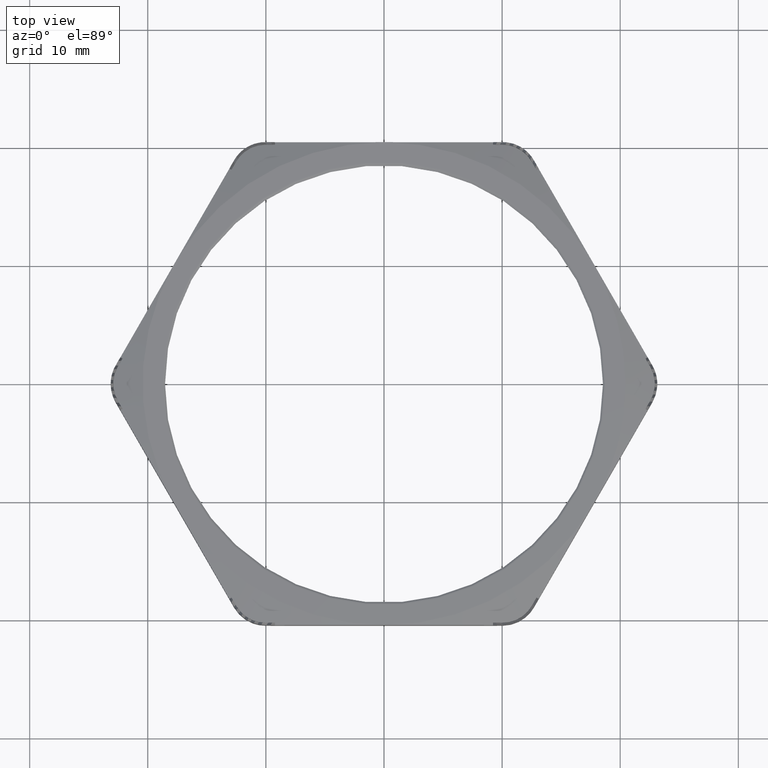
[diagram: clean part render]
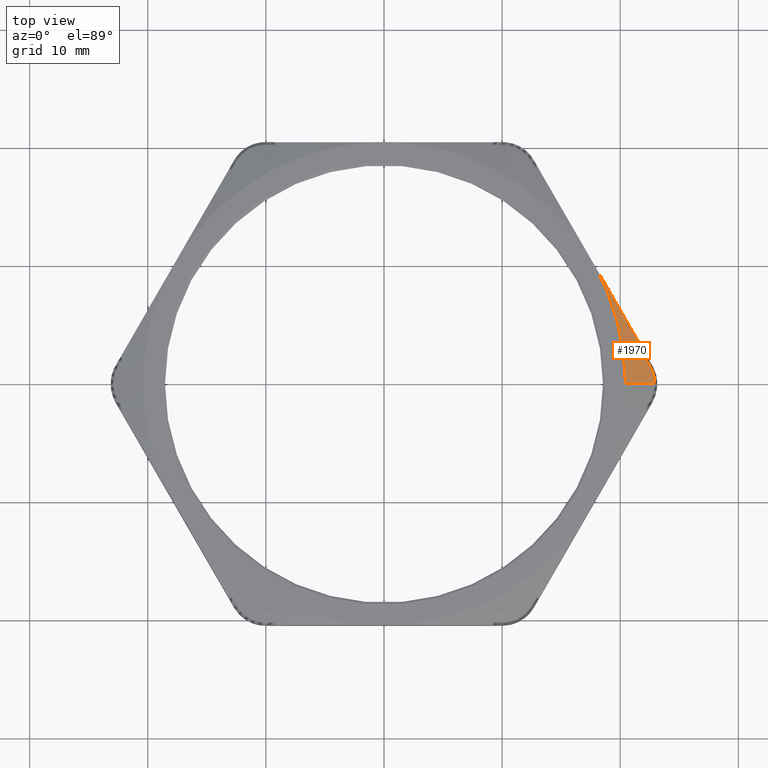
[diagram: same view with one face highlighted and labeled with its STEP entity id]
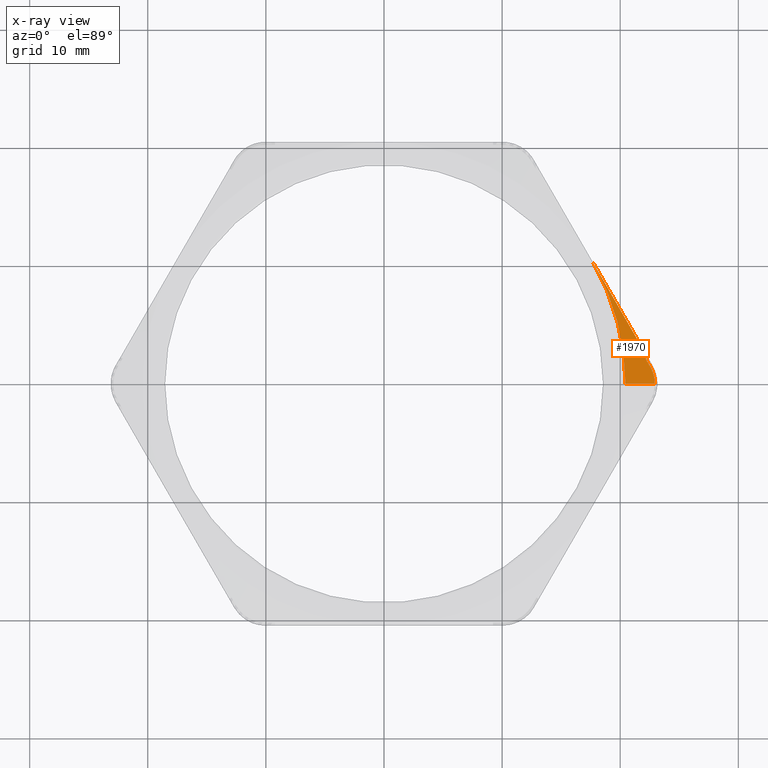
[diagram: x-ray of the same camera — body ghosted, the highlighted face saturated]
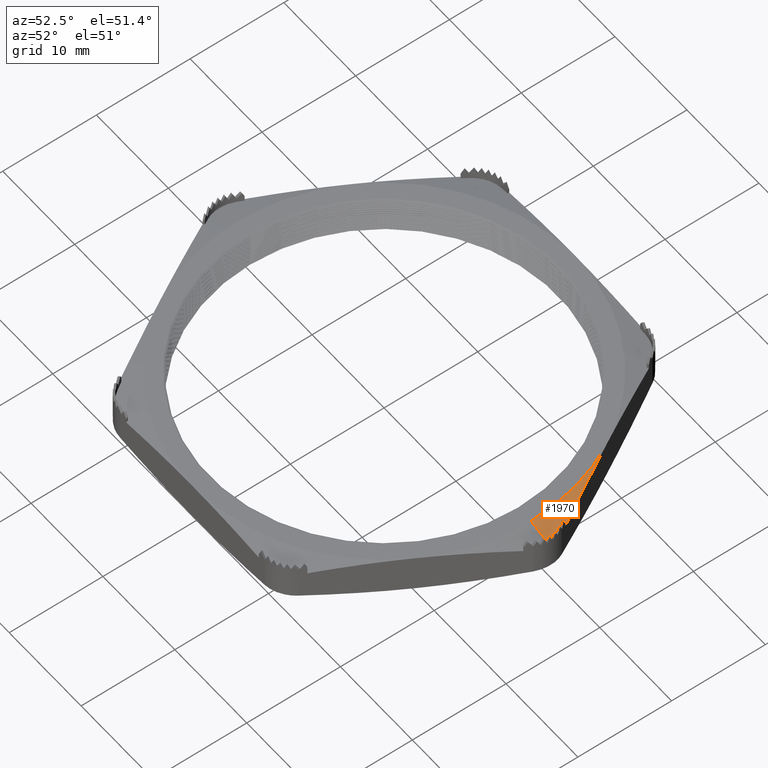
[diagram: same view with one face highlighted and labeled with its STEP entity id]
A machine part, top view. The second image highlights one B-rep face of the part: STEP entity #1970.
The next image is the same camera in x-ray: the body ghosted, the highlighted face saturated — about 0% of this face is hidden behind the body in this view.
A second angle (auxiliary view) of the same face is appended — the face is thin or edge-on in the first view.
In plain terms, the highlighted conical surface has half-angle 75 deg.
Its self-contained STEP definition (entity closure, byte-faithful):
#1912 = EDGE_CURVE ( 'NONE', #1913, #1914, #5625, .T. ) ;
#1913 = VERTEX_POINT ( 'NONE', #5624 ) ;
#1914 = VERTEX_POINT ( 'NONE', #5626 ) ;
#1970 = ADVANCED_FACE ( 'NONE', ( #5801 ), #5800, .T. ) ;
#1971 = EDGE_LOOP ( 'NONE', ( #1972, #1976, #1981, #1982, #1985, #1988 ) ) ;
#1972 = ORIENTED_EDGE ( 'NONE', *, *, #1973, .T. ) ;
#1973 = EDGE_CURVE ( 'NONE', #1974, #1975, #5794, .T. ) ;
#1974 = VERTEX_POINT ( 'NONE', #5790 ) ;
#1975 = VERTEX_POINT ( 'NONE', #5789 ) ;
#1976 = ORIENTED_EDGE ( 'NONE', *, *, #1977, .T. ) ;
#1977 = EDGE_CURVE ( 'NONE', #1975, #1913, #5788, .T. ) ;
#1981 = ORIENTED_EDGE ( 'NONE', *, *, #1912, .T. ) ;
#1982 = ORIENTED_EDGE ( 'NONE', *, *, #1983, .T. ) ;
#1983 = EDGE_CURVE ( 'NONE', #1914, #1984, #5776, .T. ) ;
#1984 = VERTEX_POINT ( 'NONE', #5775 ) ;
#1985 = ORIENTED_EDGE ( 'NONE', *, *, #1986, .T. ) ;
#1986 = EDGE_CURVE ( 'NONE', #1984, #1987, #5830, .T. ) ;
#1987 = VERTEX_POINT ( 'NONE', #5829 ) ;
#1988 = ORIENTED_EDGE ( 'NONE', *, *, #1989, .T. ) ;
#1989 = EDGE_CURVE ( 'NONE', #1987, #1974, #5822, .T. ) ;
#5623 = CARTESIAN_POINT ( 'NONE',  ( 0.9029698687897873600, -1.154631482109551200E-022, 0.1337490527751937800 ) ) ;
#5624 = CARTESIAN_POINT ( 'NONE',  ( 0.9029698687897873600, -1.154631482109551200E-022, 0.1337490527751937800 ) ) ;
#5625 = B_SPLINE_CURVE_WITH_KNOTS ( 'NONE', 3,
 ( #5623, #5669, #5668, #5667, #5666, #5665 ),
 .UNSPECIFIED., .F., .F.,
 ( 4, 2, 4 ),
 ( 0.001486779575705654300, 0.002228849811993048100, 0.002970920048280441900 ),
 .UNSPECIFIED. ) ;
#5626 = CARTESIAN_POINT ( 'NONE',  ( 0.8879647140136439600, 0.05600000000000795300, 0.1372969870991923900 ) ) ;
#5665 = CARTESIAN_POINT ( 'NONE',  ( 0.8879647140136439600, 0.05600000000000795300, 0.1372969870991923900 ) ) ;
#5666 = CARTESIAN_POINT ( 'NONE',  ( 0.8928687111893098800, 0.04750602773158067700, 0.1361288200383277400 ) ) ;
#5667 = CARTESIAN_POINT ( 'NONE',  ( 0.8966191504468799000, 0.03843020160836387000, 0.1352435418139195100 ) ) ;
#5668 = CARTESIAN_POINT ( 'NONE',  ( 0.9016632100814209200, 0.01963759924259746900, 0.1340552081044223100 ) ) ;
#5669 = CARTESIAN_POINT ( 'NONE',  ( 0.9029698687897878000, 0.009740920687401207300, 0.1337490527751935800 ) ) ;
#5756 = CARTESIAN_POINT ( 'NONE',  ( 0.0000000000000000000, 0.0000000000000000000, 0.1600000000000000000 ) ) ;
#5774 = CARTESIAN_POINT ( 'NONE',  ( 0.8879647140136439600, 0.05600000000000795300, 0.1372969870991923900 ) ) ;
#5775 = CARTESIAN_POINT ( 'NONE',  ( 0.8719647140136438400, 0.08371281292110906200, 0.1409825971328895800 ) ) ;
#5776 = B_SPLINE_CURVE_WITH_KNOTS ( 'NONE', 3,
 ( #5774, #5834, #5833, #5832 ),
 .UNSPECIFIED., .F., .F.,
 ( 4, 4 ),
 ( 2.325706409840344300E-007, 0.0008184058491383296600 ),
 .UNSPECIFIED. ) ;
#5785 = DIRECTION ( 'NONE',  ( 0.9659258262890690900, 0.0000000000000000000, -0.2588190451025179600 ) ) ;
#5786 = VECTOR ( 'NONE', #5785, 39.37007874015748100 ) ;
#5787 = CARTESIAN_POINT ( 'NONE',  ( 0.8050000000000001600, 0.0000000000000000000, 0.1600000000000000000 ) ) ;
#5788 = LINE ( 'NONE', #5787, #5786 ) ;
#5789 = CARTESIAN_POINT ( 'NONE',  ( 0.8050000000000001600, 0.0000000000000000000, 0.1600000000000000000 ) ) ;
#5790 = CARTESIAN_POINT ( 'NONE',  ( 0.6971504500464732500, 0.4024999999999999100, 0.1600000000000000000 ) ) ;
#5791 = DIRECTION ( 'NONE',  ( -1.000000000000000000, 0.0000000000000000000, 0.0000000000000000000 ) ) ;
#5792 = DIRECTION ( 'NONE',  ( 0.0000000000000000000, 0.0000000000000000000, -1.000000000000000000 ) ) ;
#5793 = AXIS2_PLACEMENT_3D ( 'NONE', #5798, #5792, #5791 ) ;
#5794 = CIRCLE ( 'NONE', #5793, 0.8050000000000001600 ) ;
#5795 = DIRECTION ( 'NONE',  ( 1.000000000000000000, 0.0000000000000000000, 0.0000000000000000000 ) ) ;
#5796 = DIRECTION ( 'NONE',  ( 0.0000000000000000000, 0.0000000000000000000, -1.000000000000000000 ) ) ;
#5797 = AXIS2_PLACEMENT_3D ( 'NONE', #5756, #5796, #5795 ) ;
#5798 = CARTESIAN_POINT ( 'NONE',  ( 0.0000000000000000000, 0.0000000000000000000, 0.1600000000000000000 ) ) ;
#5800 = CONICAL_SURFACE ( 'NONE', #5797, 0.8050000000000001600, 1.308996938995750100 ) ;
#5801 = FACE_OUTER_BOUND ( 'NONE', #1971, .T. ) ;
#5813 = CARTESIAN_POINT ( 'NONE',  ( 0.6971504500464732500, 0.4024999999999999100, 0.1600000000000000000 ) ) ;
#5814 = CARTESIAN_POINT ( 'NONE',  ( 0.7274408612460473400, 0.3500354688201848300, 0.1599999999999999800 ) ) ;
#5815 = CARTESIAN_POINT ( 'NONE',  ( 0.7577312724456210000, 0.2975709376403694600, 0.1581459543130509200 ) ) ;
#5816 = CARTESIAN_POINT ( 'NONE',  ( 0.8183120948447687400, 0.1926418752807390100, 0.1509963363517695400 ) ) ;
#5817 = CARTESIAN_POINT ( 'NONE',  ( 0.8486025060443426200, 0.1401773441009235800, 0.1457107357556512700 ) ) ;
#5818 = CARTESIAN_POINT ( 'NONE',  ( 0.8788929172439166000, 0.08771281292110835700, 0.1390305889569847500 ) ) ;
#5822 = B_SPLINE_CURVE_WITH_KNOTS ( 'NONE', 3,
 ( #5818, #5817, #5816, #5815, #5814, #5813 ),
 .UNSPECIFIED., .F., .F.,
 ( 4, 2, 4 ),
 ( 0.0008130309401078476500, 0.005429289606922905500, 0.01004554827373796400 ),
 .UNSPECIFIED. ) ;
#5825 = CARTESIAN_POINT ( 'NONE',  ( 0.8788929172439166000, 0.08771281292110835700, 0.1390305889569847500 ) ) ;
#5826 = CARTESIAN_POINT ( 'NONE',  ( 0.8765836264093768100, 0.08637954323614965800, 0.1396817798333266900 ) ) ;
#5827 = CARTESIAN_POINT ( 'NONE',  ( 0.8742742261706575300, 0.08504621038665852200, 0.1403324536377879300 ) ) ;
#5828 = CARTESIAN_POINT ( 'NONE',  ( 0.8719647140136438400, 0.08371281292110906200, 0.1409825971328895800 ) ) ;
#5829 = CARTESIAN_POINT ( 'NONE',  ( 0.8788929172439166000, 0.08771281292110835700, 0.1390305889569847500 ) ) ;
#5830 = B_SPLINE_CURVE_WITH_KNOTS ( 'NONE', 3,
 ( #5828, #5827, #5826, #5825 ),
 .UNSPECIFIED., .F., .F.,
 ( 4, 4 ),
 ( 2.377039528373158200E-007, 0.0002093991638859332900 ),
 .UNSPECIFIED. ) ;
#5832 = CARTESIAN_POINT ( 'NONE',  ( 0.8719647140136438400, 0.08371281292110906200, 0.1409825971328895800 ) ) ;
#5833 = CARTESIAN_POINT ( 'NONE',  ( 0.8773004258428432900, 0.07447108893838963500, 0.1397960908119262900 ) ) ;
#5834 = CARTESIAN_POINT ( 'NONE',  ( 0.8826338010509421400, 0.06523341210213459700, 0.1385668485416790600 ) ) ;